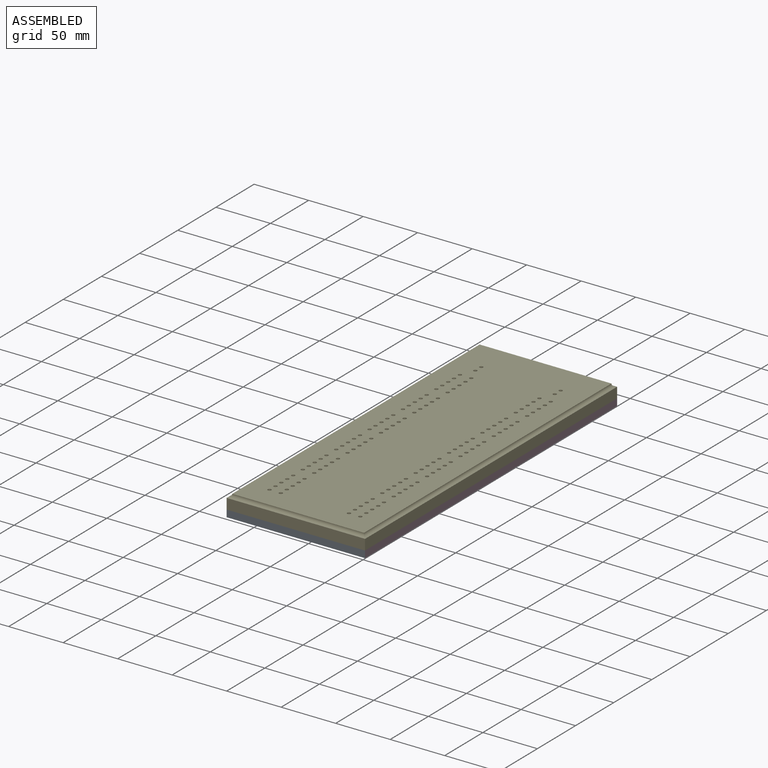
[diagram: assembled view]
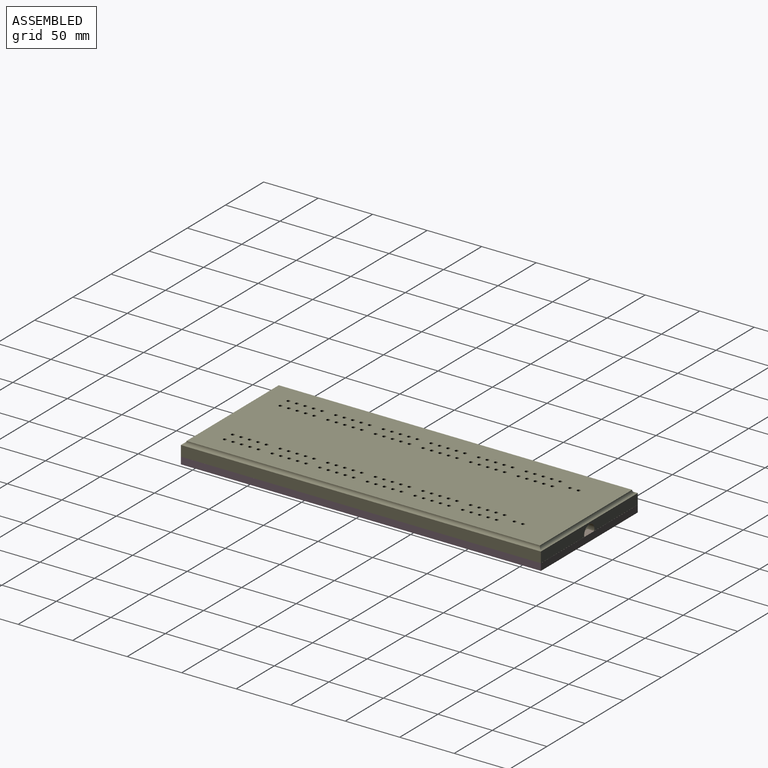
[diagram: assembled view, second angle]
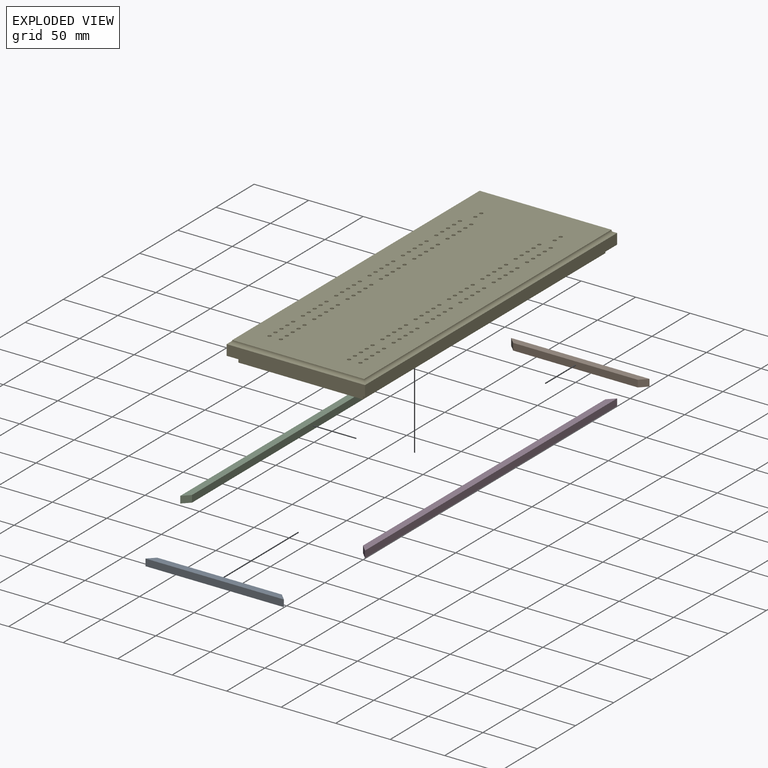
[diagram: exploded view]
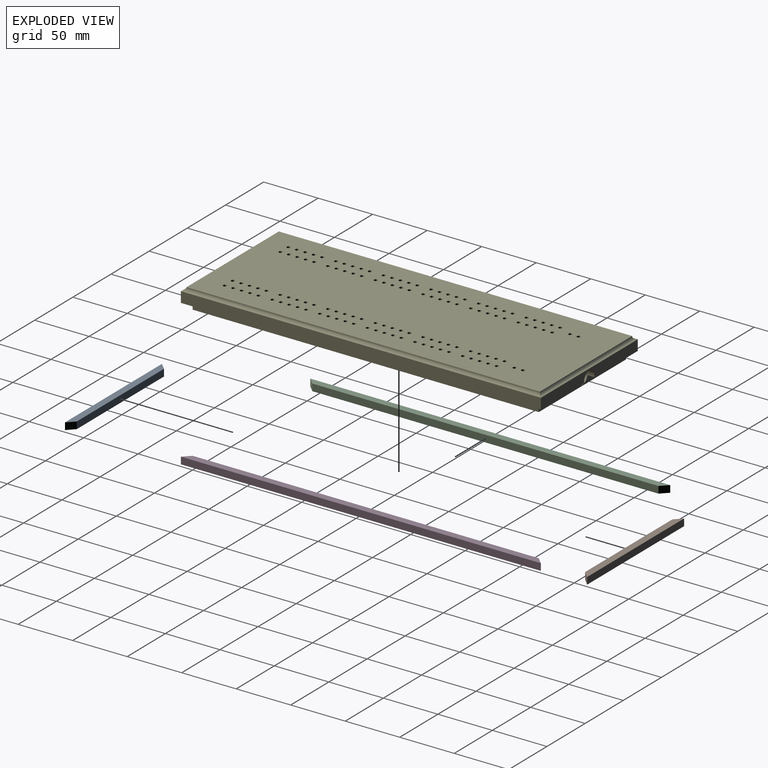
[diagram: exploded view, second angle]
ASSEMBLY  parts=5 mates=4
PART A: 6 faces, bbox 127x6.4x6.4 mm
  f0: plane 127x6.35mm, normal (0,-1,0), area 766.1mm2, adj f1,f3,f4,f5
  f1: plane 114.3x6.35mm, normal (0,0,-1), area 725.8mm2, adj f0,f2,f4,f5
  f2: plane 127x6.35mm, normal (0,1,0), area 766.1mm2, adj f1,f3,f4,f5
  f3: plane 127x6.35mm, normal (0,0,1), area 806.5mm2, adj f0,f2,f4,f5
  f4: plane 6.35x6.35mm, normal (0.71,0,-0.71), area 57mm2, adj f0,f1,f2,f3
  f5: plane 6.35x6.35mm, normal (-0.71,0,-0.71), area 57mm2, adj f0,f1,f2,f3
PART B: same geometry as A
PART C: 6 faces, bbox 330.2x6.4x6.4 mm
  f0: plane 330.2x6.35mm, normal (0,-1,0), area 2056.4mm2, adj f1,f3,f4,f5
  f1: plane 317.5x6.35mm, normal (0,0,1), area 2016.1mm2, adj f0,f2,f4,f5
  f2: plane 330.2x6.35mm, normal (0,1,0), area 2056.4mm2, adj f1,f3,f4,f5
  f3: plane 330.2x6.35mm, normal (0,0,-1), area 2096.8mm2, adj f0,f2,f4,f5
  f4: plane 6.35x6.35mm, normal (0.71,0,0.71), area 57mm2, adj f0,f1,f2,f3
  f5: plane 6.35x6.35mm, normal (-0.71,0,0.71), area 57mm2, adj f0,f1,f2,f3
PART D: same geometry as C
PART E: 265 faces, bbox 330.2x127x19.1 mm
  f0: plane 127x9.65mm, normal (1,0,0), area 1137.3mm2, adj f1,f3,f4,f13,f16
  f1: plane 330.2x127mm, normal (0,0,-1), area 5561mm2, adj f0,f3,f4,f5,f6,f8,f9,f10
  f2: plane 324.1x120.9mm, normal (0,0,1), area 38203.7mm2, adj f11,f12,f13,f14,f18,f20,f22,f24
  f3: plane 330.2x9.65mm, normal (0,-1,0), area 3187.1mm2, adj f0,f1,f5,f12
  f4: plane 330.2x9.65mm, normal (0,1,0), area 3187.1mm2, adj f0,f1,f5,f11
  f5: plane 127x9.65mm, normal (-1,0,0), area 1225.8mm2, adj f1,f3,f4,f14
  f6: plane 317.5x6.35mm, normal (0,1,0), area 2016.1mm2, adj f1,f7,f9,f10
  f7: plane 317.5x114.3mm, normal (0,0,-1), area 36290.2mm2, adj f6,f8,f9,f10
  f8: plane 317.5x6.35mm, normal (0,-1,0), area 2016.1mm2, adj f1,f7,f9,f10
  f9: plane 114.3x6.35mm, normal (1,0,0), area 671.3mm2, adj f1,f6,f7,f8,f16
  f10: plane 114.3x6.35mm, normal (-1,0,0), area 725.8mm2, adj f1,f6,f7,f8
  f11: cylinder r=3.05mm len=330.2mm, axis (-1,0,0), area 1562.3mm2, adj f2,f4,f13,f14
  f12: cylinder r=3.05mm len=330.2mm, axis (-1,0,0), area 1562.3mm2, adj f2,f3,f13,f14
  f13: cylinder r=3.05mm len=127mm, axis (0,1,0), area 589.5mm2, adj f0,f2,f11,f12
  f14: cylinder r=3.05mm len=127mm, axis (0,1,0), area 589.5mm2, adj f2,f5,f11,f12
  f15: cone r=0mm half-angle=59deg, axis (1,0,0), area 166.8mm2, adj f16
  f16: cylinder r=6.75mm len=69.85mm, axis (1,0,0), area 2842.4mm2, adj f0,f1,f9,f15
  f17: cone r=0mm half-angle=59deg, axis (0,0,1), area 9.2mm2, adj f18
  f18: cylinder r=1.59mm len=12.7mm, axis (0,0,1), area 126.7mm2, adj f2,f17
  f19: cone r=0mm half-angle=59deg, axis (0,0,1), area 9.2mm2, adj f20
  f20: cylinder r=1.59mm len=12.7mm, axis (0,0,1), area 126.7mm2, adj f2,f19
  f21: cone r=0mm half-angle=59deg, axis (0,0,1), area 9.2mm2, adj f22
  f22: cylinder r=1.59mm len=12.7mm, axis (0,0,1), area 126.7mm2, adj f2,f21
  f23: cone r=0mm half-angle=59deg, axis (0,0,1), area 9.2mm2, adj f24
  f24: cylinder r=1.59mm len=12.7mm, axis (0,0,1), area 126.7mm2, adj f2,f23
  f25: cone r=0mm half-angle=59deg, axis (0,0,1), area 9.2mm2, adj f26
  f26: cylinder r=1.59mm len=12.7mm, axis (0,0,1), area 126.7mm2, adj f2,f25
  f27: cone r=0mm half-angle=59deg, axis (0,0,1), area 9.2mm2, adj f28
  f28: cylinder r=1.59mm len=12.7mm, axis (0,0,1), area 126.7mm2, adj f2,f27
  f29: cone r=0mm half-angle=59deg, axis (0,0,1), area 9.2mm2, adj f30
  f30: cylinder r=1.59mm len=12.7mm, axis (0,0,1), area 126.7mm2, adj f2,f29
  f31: cone r=0mm half-angle=59deg, axis (0,0,1), area 9.2mm2, adj f32
  f32: cylinder r=1.59mm len=12.7mm, axis (0,0,1), area 126.7mm2, adj f2,f31
  f33: cone r=0mm half-angle=59deg, axis (0,0,1), area 9.2mm2, adj f34
  f34: cylinder r=1.59mm len=12.7mm, axis (0,0,1), area 126.7mm2, adj f2,f33
  f35: cone r=0mm half-angle=59deg, axis (0,0,1), area 9.2mm2, adj f36
  f36: cylinder r=1.59mm len=12.7mm, axis (0,0,1), area 126.7mm2, adj f2,f35
  f37: cone r=0mm half-angle=59deg, axis (0,0,1), area 9.2mm2, adj f38
  f38: cylinder r=1.59mm len=12.7mm, axis (0,0,1), area 126.7mm2, adj f2,f37
  f39: cone r=0mm half-angle=59deg, axis (0,0,1), area 9.2mm2, adj f40
  f40: cylinder r=1.59mm len=12.7mm, axis (0,0,1), area 126.7mm2, adj f2,f39
  f41: cone r=0mm half-angle=59deg, axis (0,0,1), area 9.2mm2, adj f42
  f42: cylinder r=1.59mm len=12.7mm, axis (0,0,1), area 126.7mm2, adj f2,f41
  f43: cone r=0mm half-angle=59deg, axis (0,0,1), area 9.2mm2, adj f44
  f44: cylinder r=1.59mm len=12.7mm, axis (0,0,1), area 126.7mm2, adj f2,f43
  f45: cone r=0mm half-angle=59deg, axis (0,0,1), area 9.2mm2, adj f46
  f46: cylinder r=1.59mm len=12.7mm, axis (0,0,1), area 126.7mm2, adj f2,f45
  f47: cone r=0mm half-angle=59deg, axis (0,0,1), area 9.2mm2, adj f48
  f48: cylinder r=1.59mm len=12.7mm, axis (0,0,1), area 126.7mm2, adj f2,f47
  f49: cone r=0mm half-angle=59deg, axis (0,0,1), area 9.2mm2, adj f50
  f50: cylinder r=1.59mm len=12.7mm, axis (0,0,1), area 126.7mm2, adj f2,f49
  f51: cone r=0mm half-angle=59deg, axis (0,0,1), area 9.2mm2, adj f52
  f52: cylinder r=1.59mm len=12.7mm, axis (0,0,1), area 126.7mm2, adj f2,f51
  f53: cone r=0mm half-angle=59deg, axis (0,0,1), area 9.2mm2, adj f54
  f54: cylinder r=1.59mm len=12.7mm, axis (0,0,1), area 126.7mm2, adj f2,f53
  f55: cone r=0mm half-angle=59deg, axis (0,0,1), area 9.2mm2, adj f56
  f56: cylinder r=1.59mm len=12.7mm, axis (0,0,1), area 126.7mm2, adj f2,f55
  f57: cone r=0mm half-angle=59deg, axis (0,0,1), area 9.2mm2, adj f58
  f58: cylinder r=1.59mm len=12.7mm, axis (0,0,1), area 126.7mm2, adj f2,f57
  f59: cone r=0mm half-angle=59deg, axis (0,0,1), area 9.2mm2, adj f60
  f60: cylinder r=1.59mm len=12.7mm, axis (0,0,1), area 126.7mm2, adj f2,f59
  f61: cone r=0mm half-angle=59deg, axis (0,0,1), area 9.2mm2, adj f62
  f62: cylinder r=1.59mm len=12.7mm, axis (0,0,1), area 126.7mm2, adj f2,f61
  f63: cone r=0mm half-angle=59deg, axis (0,0,1), area 9.2mm2, adj f64
  f64: cylinder r=1.59mm len=12.7mm, axis (0,0,1), area 126.7mm2, adj f2,f63
  f65: cone r=0mm half-angle=59deg, axis (0,0,1), area 9.2mm2, adj f66
  f66: cylinder r=1.59mm len=12.7mm, axis (0,0,1), area 126.7mm2, adj f2,f65
  f67: cone r=0mm half-angle=59deg, axis (0,0,1), area 9.2mm2, adj f68
  f68: cylinder r=1.59mm len=12.7mm, axis (0,0,1), area 126.7mm2, adj f2,f67
  f69: cone r=0mm half-angle=59deg, axis (0,0,1), area 9.2mm2, adj f70
  f70: cylinder r=1.59mm len=12.7mm, axis (0,0,1), area 126.7mm2, adj f2,f69
  f71: cone r=0mm half-angle=59deg, axis (0,0,1), area 9.2mm2, adj f72
  f72: cylinder r=1.59mm len=12.7mm, axis (0,0,1), area 126.7mm2, adj f2,f71
  f73: cone r=0mm half-angle=59deg, axis (0,0,1), area 9.2mm2, adj f74
  f74: cylinder r=1.59mm len=12.7mm, axis (0,0,1), area 126.7mm2, adj f2,f73
  f75: cone r=0mm half-angle=59deg, axis (0,0,1), area 9.2mm2, adj f76
  f76: cylinder r=1.59mm len=12.7mm, axis (0,0,1), area 126.7mm2, adj f2,f75
  f77: cone r=0mm half-angle=59deg, axis (0,0,1), area 9.2mm2, adj f78
  f78: cylinder r=1.59mm len=12.7mm, axis (0,0,1), area 126.7mm2, adj f2,f77
  f79: cone r=0mm half-angle=59deg, axis (0,0,1), area 9.2mm2, adj f80
  f80: cylinder r=1.59mm len=12.7mm, axis (0,0,1), area 126.7mm2, adj f2,f79
  f81: cone r=0mm half-angle=59deg, axis (0,0,1), area 9.2mm2, adj f82
  f82: cylinder r=1.59mm len=12.7mm, axis (0,0,1), area 126.7mm2, adj f2,f81
  f83: cone r=0mm half-angle=59deg, axis (0,0,1), area 9.2mm2, adj f84
  f84: cylinder r=1.59mm len=12.7mm, axis (0,0,1), area 126.7mm2, adj f2,f83
  f85: cone r=0mm half-angle=59deg, axis (0,0,1), area 9.2mm2, adj f86
  f86: cylinder r=1.59mm len=12.7mm, axis (0,0,1), area 126.7mm2, adj f2,f85
  f87: cone r=0mm half-angle=59deg, axis (0,0,1), area 9.2mm2, adj f88
  f88: cylinder r=1.59mm len=12.7mm, axis (0,0,1), area 126.7mm2, adj f2,f87
  f89: cone r=0mm half-angle=59deg, axis (0,0,1), area 9.2mm2, adj f90
  f90: cylinder r=1.59mm len=12.7mm, axis (0,0,1), area 126.7mm2, adj f2,f89
  f91: cone r=0mm half-angle=59deg, axis (0,0,1), area 9.2mm2, adj f92
  f92: cylinder r=1.59mm len=12.7mm, axis (0,0,1), area 126.7mm2, adj f2,f91
  f93: cone r=0mm half-angle=59deg, axis (0,0,1), area 9.2mm2, adj f94
  f94: cylinder r=1.59mm len=12.7mm, axis (0,0,1), area 126.7mm2, adj f2,f93
  f95: cone r=0mm half-angle=59deg, axis (0,0,1), area 9.2mm2, adj f96
  f96: cylinder r=1.59mm len=12.7mm, axis (0,0,1), area 126.7mm2, adj f2,f95
  f97: cone r=0mm half-angle=59deg, axis (0,0,1), area 9.2mm2, adj f98
  f98: cylinder r=1.59mm len=12.7mm, axis (0,0,1), area 126.7mm2, adj f2,f97
  f99: cone r=0mm half-angle=59deg, axis (0,0,1), area 9.2mm2, adj f100
  f100: cylinder r=1.59mm len=12.7mm, axis (0,0,1), area 126.7mm2, adj f2,f99
  f101: cone r=0mm half-angle=59deg, axis (0,0,1), area 9.2mm2, adj f102
  f102: cylinder r=1.59mm len=12.7mm, axis (0,0,1), area 126.7mm2, adj f2,f101
  f103: cone r=0mm half-angle=59deg, axis (0,0,1), area 9.2mm2, adj f104
  f104: cylinder r=1.59mm len=12.7mm, axis (0,0,1), area 126.7mm2, adj f2,f103
  f105: cone r=0mm half-angle=59deg, axis (0,0,1), area 9.2mm2, adj f106
  f106: cylinder r=1.59mm len=12.7mm, axis (0,0,1), area 126.7mm2, adj f2,f105
  f107: cone r=0mm half-angle=59deg, axis (0,0,1), area 9.2mm2, adj f108
  f108: cylinder r=1.59mm len=12.7mm, axis (0,0,1), area 126.7mm2, adj f2,f107
  f109: cone r=0mm half-angle=59deg, axis (0,0,1), area 9.2mm2, adj f110
  f110: cylinder r=1.59mm len=12.7mm, axis (0,0,1), area 126.7mm2, adj f2,f109
  f111: cone r=0mm half-angle=59deg, axis (0,0,1), area 9.2mm2, adj f112
  f112: cylinder r=1.59mm len=12.7mm, axis (0,0,1), area 126.7mm2, adj f2,f111
  f113: cone r=0mm half-angle=59deg, axis (0,0,1), area 9.2mm2, adj f114
  f114: cylinder r=1.59mm len=12.7mm, axis (0,0,1), area 126.7mm2, adj f2,f113
  f115: cone r=0mm half-angle=59deg, axis (0,0,1), area 9.2mm2, adj f116
  f116: cylinder r=1.59mm len=12.7mm, axis (0,0,1), area 126.7mm2, adj f2,f115
  f117: cone r=0mm half-angle=59deg, axis (0,0,1), area 9.2mm2, adj f118
  f118: cylinder r=1.59mm len=12.7mm, axis (0,0,1), area 126.7mm2, adj f2,f117
  f119: cone r=0mm half-angle=59deg, axis (0,0,1), area 9.2mm2, adj f120
  f120: cylinder r=1.59mm len=12.7mm, axis (0,0,1), area 126.7mm2, adj f2,f119
  f121: cone r=0mm half-angle=59deg, axis (0,0,1), area 9.2mm2, adj f122
  f122: cylinder r=1.59mm len=12.7mm, axis (0,0,1), area 126.7mm2, adj f2,f121
  f123: cone r=0mm half-angle=59deg, axis (0,0,1), area 9.2mm2, adj f124
  f124: cylinder r=1.59mm len=12.7mm, axis (0,0,1), area 126.7mm2, adj f2,f123
  f125: cone r=0mm half-angle=59deg, axis (0,0,1), area 9.2mm2, adj f126
  f126: cylinder r=1.59mm len=12.7mm, axis (0,0,1), area 126.7mm2, adj f2,f125
  f127: cone r=0mm half-angle=59deg, axis (0,0,1), area 9.2mm2, adj f128
  f128: cylinder r=1.59mm len=12.7mm, axis (0,0,1), area 126.7mm2, adj f2,f127
  f129: cone r=0mm half-angle=59deg, axis (0,0,1), area 9.2mm2, adj f130
  f130: cylinder r=1.59mm len=12.7mm, axis (0,0,1), area 126.7mm2, adj f2,f129
  f131: cone r=0mm half-angle=59deg, axis (0,0,1), area 9.2mm2, adj f132
  f132: cylinder r=1.59mm len=12.7mm, axis (0,0,1), area 126.7mm2, adj f2,f131
  f133: cone r=0mm half-angle=59deg, axis (0,0,1), area 9.2mm2, adj f134
  f134: cylinder r=1.59mm len=12.7mm, axis (0,0,1), area 126.7mm2, adj f2,f133
  f135: cone r=0mm half-angle=59deg, axis (0,0,1), area 9.2mm2, adj f136
  f136: cylinder r=1.59mm len=12.7mm, axis (0,0,1), area 126.7mm2, adj f2,f135
  f137: cone r=0mm half-angle=59deg, axis (0,0,1), area 9.2mm2, adj f138
  f138: cylinder r=1.59mm len=12.7mm, axis (0,0,1), area 126.7mm2, adj f2,f137
  f139: cone r=0mm half-angle=59deg, axis (0,0,1), area 9.2mm2, adj f140
  f140: cylinder r=1.59mm len=12.7mm, axis (0,0,1), area 126.7mm2, adj f2,f139
  f141: cone r=0mm half-angle=59deg, axis (0,0,1), area 9.2mm2, adj f142
  f142: cylinder r=1.59mm len=12.7mm, axis (0,0,1), area 126.7mm2, adj f2,f141
  f143: cone r=0mm half-angle=59deg, axis (0,0,1), area 9.2mm2, adj f144
  f144: cylinder r=1.59mm len=12.7mm, axis (0,0,1), area 126.7mm2, adj f2,f143
  f145: cone r=0mm half-angle=59deg, axis (0,0,1), area 9.2mm2, adj f146
  f146: cylinder r=1.59mm len=12.7mm, axis (0,0,1), area 126.7mm2, adj f2,f145
  f147: cone r=0mm half-angle=59deg, axis (0,0,1), area 9.2mm2, adj f148
  f148: cylinder r=1.59mm len=12.7mm, axis (0,0,1), area 126.7mm2, adj f2,f147
  f149: cone r=0mm half-angle=59deg, axis (0,0,1), area 9.2mm2, adj f150
  f150: cylinder r=1.59mm len=12.7mm, axis (0,0,1), area 126.7mm2, adj f2,f149
  f151: cone r=0mm half-angle=59deg, axis (0,0,1), area 9.2mm2, adj f152
  f152: cylinder r=1.59mm len=12.7mm, axis (0,0,1), area 126.7mm2, adj f2,f151
  f153: cone r=0mm half-angle=59deg, axis (0,0,1), area 9.2mm2, adj f154
  f154: cylinder r=1.59mm len=12.7mm, axis (0,0,1), area 126.7mm2, adj f2,f153
  f155: cone r=0mm half-angle=59deg, axis (0,0,1), area 9.2mm2, adj f156
  f156: cylinder r=1.59mm len=12.7mm, axis (0,0,1), area 126.7mm2, adj f2,f155
  f157: cone r=0mm half-angle=59deg, axis (0,0,1), area 9.2mm2, adj f158
  f158: cylinder r=1.59mm len=12.7mm, axis (0,0,1), area 126.7mm2, adj f2,f157
  f159: cone r=0mm half-angle=59deg, axis (0,0,1), area 9.2mm2, adj f160
  f160: cylinder r=1.59mm len=12.7mm, axis (0,0,1), area 126.7mm2, adj f2,f159
  f161: cone r=0mm half-angle=59deg, axis (0,0,1), area 9.2mm2, adj f162
  f162: cylinder r=1.59mm len=12.7mm, axis (0,0,1), area 126.7mm2, adj f2,f161
  f163: cone r=0mm half-angle=59deg, axis (0,0,1), area 9.2mm2, adj f164
  f164: cylinder r=1.59mm len=12.7mm, axis (0,0,1), area 126.7mm2, adj f2,f163
  f165: cone r=0mm half-angle=59deg, axis (0,0,1), area 9.2mm2, adj f166
  f166: cylinder r=1.59mm len=12.7mm, axis (0,0,1), area 126.7mm2, adj f2,f165
  f167: cone r=0mm half-angle=59deg, axis (0,0,1), area 9.2mm2, adj f168
  f168: cylinder r=1.59mm len=12.7mm, axis (0,0,1), area 126.7mm2, adj f2,f167
  f169: cone r=0mm half-angle=59deg, axis (0,0,1), area 9.2mm2, adj f170
  f170: cylinder r=1.59mm len=12.7mm, axis (0,0,1), area 126.7mm2, adj f2,f169
  f171: cone r=0mm half-angle=59deg, axis (0,0,1), area 9.2mm2, adj f172
  f172: cylinder r=1.59mm len=12.7mm, axis (0,0,1), area 126.7mm2, adj f2,f171
  f173: cone r=0mm half-angle=59deg, axis (0,0,1), area 9.2mm2, adj f174
  f174: cylinder r=1.59mm len=12.7mm, axis (0,0,1), area 126.7mm2, adj f2,f173
  f175: cone r=0mm half-angle=59deg, axis (0,0,1), area 9.2mm2, adj f176
  f176: cylinder r=1.59mm len=12.7mm, axis (0,0,1), area 126.7mm2, adj f2,f175
  f177: cone r=0mm half-angle=59deg, axis (0,0,1), area 9.2mm2, adj f178
  f178: cylinder r=1.59mm len=12.7mm, axis (0,0,1), area 126.7mm2, adj f2,f177
  f179: cone r=0mm half-angle=59deg, axis (0,0,1), area 9.2mm2, adj f180
  f180: cylinder r=1.59mm len=12.7mm, axis (0,0,1), area 126.7mm2, adj f2,f179
  f181: cone r=0mm half-angle=59deg, axis (0,0,1), area 9.2mm2, adj f182
  f182: cylinder r=1.59mm len=12.7mm, axis (0,0,1), area 126.7mm2, adj f2,f181
  f183: cone r=0mm half-angle=59deg, axis (0,0,1), area 9.2mm2, adj f184
  f184: cylinder r=1.59mm len=12.7mm, axis (0,0,1), area 126.7mm2, adj f2,f183
  f185: cone r=0mm half-angle=59deg, axis (0,0,1), area 9.2mm2, adj f186
  f186: cylinder r=1.59mm len=12.7mm, axis (0,0,1), area 126.7mm2, adj f2,f185
  f187: cone r=0mm half-angle=59deg, axis (0,0,1), area 9.2mm2, adj f188
  f188: cylinder r=1.59mm len=12.7mm, axis (0,0,1), area 126.7mm2, adj f2,f187
  f189: cone r=0mm half-angle=59deg, axis (0,0,1), area 9.2mm2, adj f190
  f190: cylinder r=1.59mm len=12.7mm, axis (0,0,1), area 126.7mm2, adj f2,f189
  f191: cone r=0mm half-angle=59deg, axis (0,0,1), area 9.2mm2, adj f192
  f192: cylinder r=1.59mm len=12.7mm, axis (0,0,1), area 126.7mm2, adj f2,f191
  f193: cone r=0mm half-angle=59deg, axis (0,0,1), area 9.2mm2, adj f194
  f194: cylinder r=1.59mm len=12.7mm, axis (0,0,1), area 126.7mm2, adj f2,f193
  f195: cone r=0mm half-angle=59deg, axis (0,0,1), area 9.2mm2, adj f196
  f196: cylinder r=1.59mm len=12.7mm, axis (0,0,1), area 126.7mm2, adj f2,f195
  f197: cone r=0mm half-angle=59deg, axis (0,0,1), area 9.2mm2, adj f198
  f198: cylinder r=1.59mm len=12.7mm, axis (0,0,1), area 126.7mm2, adj f2,f197
  f199: cone r=0mm half-angle=59deg, axis (0,0,1), area 9.2mm2, adj f200
  f200: cylinder r=1.59mm len=12.7mm, axis (0,0,1), area 126.7mm2, adj f2,f199
  f201: cone r=0mm half-angle=59deg, axis (0,0,1), area 9.2mm2, adj f202
  f202: cylinder r=1.59mm len=12.7mm, axis (0,0,1), area 126.7mm2, adj f2,f201
  f203: cone r=0mm half-angle=59deg, axis (0,0,1), area 9.2mm2, adj f204
  f204: cylinder r=1.59mm len=12.7mm, axis (0,0,1), area 126.7mm2, adj f2,f203
  f205: cone r=0mm half-angle=59deg, axis (0,0,1), area 9.2mm2, adj f206
  f206: cylinder r=1.59mm len=12.7mm, axis (0,0,1), area 126.7mm2, adj f2,f205
  f207: cone r=0mm half-angle=59deg, axis (0,0,1), area 9.2mm2, adj f208
  f208: cylinder r=1.59mm len=12.7mm, axis (0,0,1), area 126.7mm2, adj f2,f207
  f209: cone r=0mm half-angle=59deg, axis (0,0,1), area 9.2mm2, adj f210
  f210: cylinder r=1.59mm len=12.7mm, axis (0,0,1), area 126.7mm2, adj f2,f209
  f211: cone r=0mm half-angle=59deg, axis (0,0,1), area 9.2mm2, adj f212
  f212: cylinder r=1.59mm len=12.7mm, axis (0,0,1), area 126.7mm2, adj f2,f211
  f213: cone r=0mm half-angle=59deg, axis (0,0,1), area 9.2mm2, adj f214
  f214: cylinder r=1.59mm len=12.7mm, axis (0,0,1), area 126.7mm2, adj f2,f213
  f215: cone r=0mm half-angle=59deg, axis (0,0,1), area 9.2mm2, adj f216
  f216: cylinder r=1.59mm len=12.7mm, axis (0,0,1), area 126.7mm2, adj f2,f215
  f217: cone r=0mm half-angle=59deg, axis (0,0,1), area 9.2mm2, adj f218
  f218: cylinder r=1.59mm len=12.7mm, axis (0,0,1), area 126.7mm2, adj f2,f217
  f219: cone r=0mm half-angle=59deg, axis (0,0,1), area 9.2mm2, adj f220
  f220: cylinder r=1.59mm len=12.7mm, axis (0,0,1), area 126.7mm2, adj f2,f219
  f221: cone r=0mm half-angle=59deg, axis (0,0,1), area 9.2mm2, adj f222
  f222: cylinder r=1.59mm len=12.7mm, axis (0,0,1), area 126.7mm2, adj f2,f221
  f223: cone r=0mm half-angle=59deg, axis (0,0,1), area 9.2mm2, adj f224
  f224: cylinder r=1.59mm len=12.7mm, axis (0,0,1), area 126.7mm2, adj f2,f223
  f225: cone r=0mm half-angle=59deg, axis (0,0,1), area 9.2mm2, adj f226
  f226: cylinder r=1.59mm len=12.7mm, axis (0,0,1), area 126.7mm2, adj f2,f225
  f227: cone r=0mm half-angle=59deg, axis (0,0,1), area 9.2mm2, adj f228
  f228: cylinder r=1.59mm len=12.7mm, axis (0,0,1), area 126.7mm2, adj f2,f227
  f229: cone r=0mm half-angle=59deg, axis (0,0,1), area 9.2mm2, adj f230
  f230: cylinder r=1.59mm len=12.7mm, axis (0,0,1), area 126.7mm2, adj f2,f229
  f231: cone r=0mm half-angle=59deg, axis (0,0,1), area 9.2mm2, adj f232
  f232: cylinder r=1.59mm len=12.7mm, axis (0,0,1), area 126.7mm2, adj f2,f231
  f233: cone r=0mm half-angle=59deg, axis (0,0,1), area 9.2mm2, adj f234
  f234: cylinder r=1.59mm len=12.7mm, axis (0,0,1), area 126.7mm2, adj f2,f233
  f235: cone r=0mm half-angle=59deg, axis (0,0,1), area 9.2mm2, adj f236
  f236: cylinder r=1.59mm len=12.7mm, axis (0,0,1), area 126.7mm2, adj f2,f235
  f237: cone r=0mm half-angle=59deg, axis (0,0,1), area 9.2mm2, adj f238
  f238: cylinder r=1.59mm len=12.7mm, axis (0,0,1), area 126.7mm2, adj f2,f237
  f239: cone r=0mm half-angle=59deg, axis (0,0,1), area 9.2mm2, adj f240
  f240: cylinder r=1.59mm len=12.7mm, axis (0,0,1), area 126.7mm2, adj f2,f239
  f241: cone r=0mm half-angle=59deg, axis (0,0,1), area 9.2mm2, adj f242
  f242: cylinder r=1.59mm len=12.7mm, axis (0,0,1), area 126.7mm2, adj f2,f241
  f243: cone r=0mm half-angle=59deg, axis (0,0,1), area 9.2mm2, adj f244
  f244: cylinder r=1.59mm len=12.7mm, axis (0,0,1), area 126.7mm2, adj f2,f243
  f245: cone r=0mm half-angle=59deg, axis (0,0,1), area 9.2mm2, adj f246
  f246: cylinder r=1.59mm len=12.7mm, axis (0,0,1), area 126.7mm2, adj f2,f245
  f247: cone r=0mm half-angle=59deg, axis (0,0,1), area 9.2mm2, adj f248
  f248: cylinder r=1.59mm len=12.7mm, axis (0,0,1), area 126.7mm2, adj f2,f247
  f249: cone r=0mm half-angle=59deg, axis (0,0,1), area 9.2mm2, adj f250
  f250: cylinder r=1.59mm len=12.7mm, axis (0,0,1), area 126.7mm2, adj f2,f249
  f251: cone r=0mm half-angle=59deg, axis (0,0,1), area 9.2mm2, adj f252
  f252: cylinder r=1.59mm len=12.7mm, axis (0,0,1), area 126.7mm2, adj f2,f251
  f253: cone r=0mm half-angle=59deg, axis (0,0,1), area 9.2mm2, adj f254
  f254: cylinder r=1.59mm len=12.7mm, axis (0,0,1), area 126.7mm2, adj f2,f253
  f255: cone r=0mm half-angle=59deg, axis (0,0,1), area 9.2mm2, adj f256
  f256: cylinder r=1.59mm len=12.7mm, axis (0,0,1), area 126.7mm2, adj f2,f255
  f257: cone r=0mm half-angle=59deg, axis (0,0,1), area 9.2mm2, adj f258
  f258: cylinder r=1.59mm len=12.7mm, axis (0,0,1), area 126.7mm2, adj f2,f257
  f259: cone r=0mm half-angle=59deg, axis (0,0,1), area 9.2mm2, adj f260
  f260: cylinder r=1.59mm len=12.7mm, axis (0,0,1), area 126.7mm2, adj f2,f259
  f261: cone r=0mm half-angle=59deg, axis (0,0,1), area 9.2mm2, adj f262
  f262: cylinder r=1.59mm len=12.7mm, axis (0,0,1), area 126.7mm2, adj f2,f261
  f263: cone r=0mm half-angle=59deg, axis (0,0,1), area 9.2mm2, adj f264
  f264: cylinder r=1.59mm len=12.7mm, axis (0,0,1), area 126.7mm2, adj f2,f263
PLACE A rot(axis=(1,0,0),90deg) t=(-120.65,-6.35,0)mm
PLACE B rot(axis=(0,0.71,0.71),180deg) t=(6.35,323.85,-0.07)mm
PLACE C rot(axis=(0.58,0.58,0.58),120deg) t=(-120.65,-6.35,0)mm
PLACE D rot(axis=(-0.58,-0.58,0.58),120deg) t=(6.35,-6.35,6.35)mm
PLACE E rot(axis=(0,0,1),90deg) t=(6.35,-6.35,19.05)mm
MATE fastened C.f1 <-> E.f6  axis (1,0,0) through (-114.3,158.75,3.17)mm
MATE fastened A.f1 <-> E.f10  axis (0,1,0) through (-57.15,0,3.17)mm
MATE fastened D.f1 <-> E.f8  axis (-1,0,0) through (0,158.75,3.18)mm
MATE fastened B.f1 <-> E.f9  axis (0,-1,0) through (-57.15,317.5,3.1)mm
